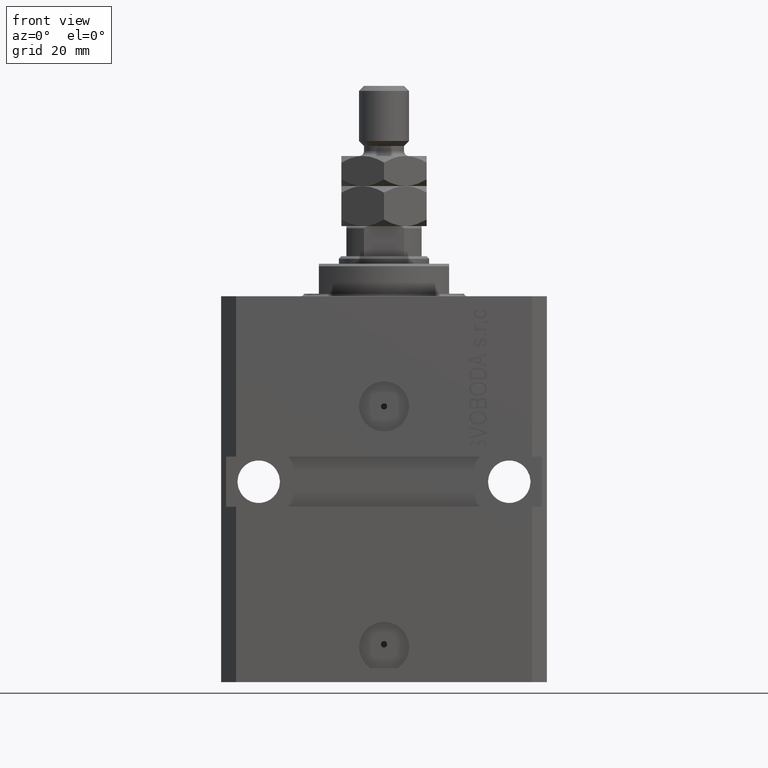
[diagram: clean part render]
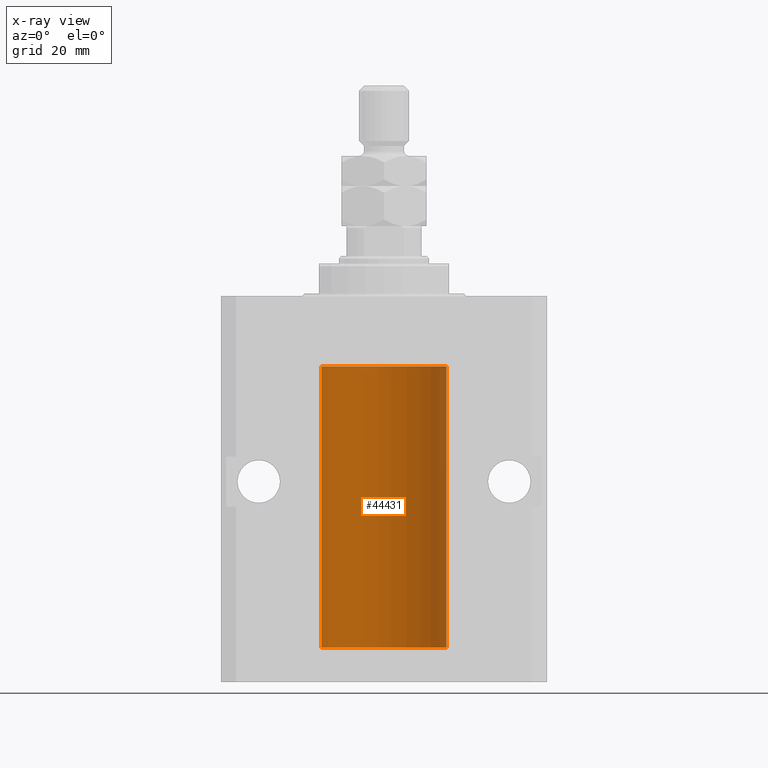
[diagram: x-ray — body ghosted, one internal face saturated and labeled with its STEP entity id]
A machine part, front view, then the same camera in x-ray: the body is ghosted and one INTERNAL B-rep face — a face not visible from any outside direction — is saturated and labeled: STEP entity #44431.
In plain terms, the highlighted cylindrical surface (partial cylindrical patch) has radius 12.5 mm, axis along (0, 0, 1).
Its self-contained STEP definition (entity closure, byte-faithful):
#1528 = CARTESIAN_POINT ( 'NONE',  ( -12.50000000000000000, 1.530808498934191521E-15, -70.09999999999999432 ) ) ;
#1758 = CARTESIAN_POINT ( 'NONE',  ( 0.000000000000000000, 0.000000000000000000, -13.99999999999999822 ) ) ;
#1916 = CARTESIAN_POINT ( 'NONE',  ( -12.50000000000000000, 1.530808498934191521E-15, -70.09999999999999432 ) ) ;
#2045 = VERTEX_POINT ( 'NONE', #35384 ) ;
#2124 = VERTEX_POINT ( 'NONE', #19880 ) ;
#2468 = CARTESIAN_POINT ( 'NONE',  ( 0.000000000000000000, 0.000000000000000000, -70.09999999999999432 ) ) ;
#2909 = ORIENTED_EDGE ( 'NONE', *, *, #47542, .F. ) ;
#2944 = CARTESIAN_POINT ( 'NONE',  ( -12.48436813453758454, 0.6249418250771192618, -21.83668996798922635 ) ) ;
#3415 = CARTESIAN_POINT ( 'NONE',  ( -12.48436376893640443, 0.6250290278979917513, -22.08132082824473486 ) ) ;
#4339 = CIRCLE ( 'NONE', #37390, 12.50000000000000000 ) ;
#4475 = VECTOR ( 'NONE', #43895, 1000.000000000000000 ) ;
#4681 = CARTESIAN_POINT ( 'NONE',  ( -12.50000000000017941, 3.883381774819353300E-13, -65.62500000000359535 ) ) ;
#4797 = VERTEX_POINT ( 'NONE', #5204 ) ;
#5204 = CARTESIAN_POINT ( 'NONE',  ( 12.50000000000000000, 0.000000000000000000, -13.99999999999999822 ) ) ;
#5277 = CARTESIAN_POINT ( 'NONE',  ( -12.49999999999999822, 0.1631761135151225950, -65.62499999999985789 ) ) ;
#6987 = DIRECTION ( 'NONE',  ( 1.000000000000000000, 0.000000000000000000, 0.000000000000000000 ) ) ;
#7117 = CARTESIAN_POINT ( 'NONE',  ( -12.49625855304193678, 0.3150454781038042329, -21.45402800297484802 ) ) ;
#7350 = CARTESIAN_POINT ( 'NONE',  ( -12.48520330846397819, 0.6088355886774127201, -22.16325431852561323 ) ) ;
#7991 = VERTEX_POINT ( 'NONE', #18638 ) ;
#8958 = CARTESIAN_POINT ( 'NONE',  ( -12.49422197749724361, 0.3843754434364307082, -64.50047099568097053 ) ) ;
#9176 = VECTOR ( 'NONE', #22937, 1000.000000000000000 ) ;
#9209 = CARTESIAN_POINT ( 'NONE',  ( -12.49625855304193500, 0.3150454781038046770, -64.45402800297485157 ) ) ;
#9453 = CARTESIAN_POINT ( 'NONE',  ( -12.49915784441386890, 0.1636601911727943726, -64.39126818989430490 ) ) ;
#9686 = CARTESIAN_POINT ( 'NONE',  ( -12.48810268015257741, 0.5573155909661293705, -64.67347410093867666 ) ) ;
#9842 = B_SPLINE_CURVE_WITH_KNOTS ( 'NONE', 3,
 ( #24240, #46654, #9453, #9209, #8958, #9686, #12897, #27938, #20783, #24708, #35568, #39754, #5277, #39281 ),
 .UNSPECIFIED., .F., .F.,
 ( 4, 2, 2, 2, 2, 2, 4 ),
 ( 3.492495172846855184E-18, 0.0002442924852390798859, 0.0004885849704781563023, 0.0009771699409563386254, 0.001221462426195450658, 0.001465754911434562473, 0.001954339881912786538 ),
 .UNSPECIFIED. ) ;
#10438 = ORIENTED_EDGE ( 'NONE', *, *, #41133, .T. ) ;
#10461 = VERTEX_POINT ( 'NONE', #4681 ) ;
#12626 = B_SPLINE_CURVE_WITH_KNOTS ( 'NONE', 3,
 ( #26086, #40885, #21666, #7117, #41117, #37180, #2944, #3415, #7350, #18455, #33467, #32998, #29539, #48508 ),
 .UNSPECIFIED., .F., .F.,
 ( 4, 2, 2, 2, 2, 2, 4 ),
 ( 2.030551168097110502E-20, 0.0002442924852390969078, 0.0004885849704781938157, 0.0009771699409563880650, 0.001221462426195485135, 0.001465754911434582423, 0.001954339881912776130 ),
 .UNSPECIFIED. ) ;
#12897 = CARTESIAN_POINT ( 'NONE',  ( -12.48436813453758809, 0.6249418250771181516, -64.83668996798922990 ) ) ;
#17747 = ORIENTED_EDGE ( 'NONE', *, *, #19036, .T. ) ;
#17855 = FACE_OUTER_BOUND ( 'NONE', #44919, .T. ) ;
#18455 = CARTESIAN_POINT ( 'NONE',  ( -12.48809959379011403, 0.5462151254764975317, -22.31461370481611795 ) ) ;
#18638 = CARTESIAN_POINT ( 'NONE',  ( 12.50000000000000000, 0.000000000000000000, -70.09999999999999432 ) ) ;
#19036 = EDGE_CURVE ( 'NONE', #4797, #35831, #4339, .T. ) ;
#19518 = EDGE_CURVE ( 'NONE', #2124, #10461, #9842, .T. ) ;
#19880 = CARTESIAN_POINT ( 'NONE',  ( -12.50000000000000000, -1.053276923642966949E-14, -64.37500000000000000 ) ) ;
#20783 = CARTESIAN_POINT ( 'NONE',  ( -12.48520330846398174, 0.6088355886774118320, -65.16325431852561678 ) ) ;
#21322 = EDGE_CURVE ( 'NONE', #32458, #23440, #12626, .T. ) ;
#21475 = ORIENTED_EDGE ( 'NONE', *, *, #35467, .F. ) ;
#21666 = CARTESIAN_POINT ( 'NONE',  ( -12.49915784441386890, 0.1636601911727947889, -21.39126818989430490 ) ) ;
#22464 = VECTOR ( 'NONE', #24814, 1000.000000000000000 ) ;
#22937 = DIRECTION ( 'NONE',  ( -0.000000000000000000, -0.000000000000000000, 1.000000000000000000 ) ) ;
#23440 = VERTEX_POINT ( 'NONE', #39636 ) ;
#24240 = CARTESIAN_POINT ( 'NONE',  ( -12.50000000000000000, -1.053276923642966949E-14, -64.37500000000000000 ) ) ;
#24632 = DIRECTION ( 'NONE',  ( 0.000000000000000000, 0.000000000000000000, 1.000000000000000000 ) ) ;
#24708 = CARTESIAN_POINT ( 'NONE',  ( -12.48809959379011580, 0.5462151254764966435, -65.31461370481613926 ) ) ;
#24814 = DIRECTION ( 'NONE',  ( -0.000000000000000000, -0.000000000000000000, 1.000000000000000000 ) ) ;
#26086 = CARTESIAN_POINT ( 'NONE',  ( -12.50000000000000000, -2.089494013101375120E-17, -21.37499999999999645 ) ) ;
#27578 = VECTOR ( 'NONE', #39494, 1000.000000000000000 ) ;
#27938 = CARTESIAN_POINT ( 'NONE',  ( -12.48436376893640265, 0.6250290278979918623, -65.08132082824472775 ) ) ;
#29539 = CARTESIAN_POINT ( 'NONE',  ( -12.49999999999999289, 0.1631761135151241215, -22.62499999999984013 ) ) ;
#29573 = CIRCLE ( 'NONE', #35760, 12.50000000000000000 ) ;
#29653 = DIRECTION ( 'NONE',  ( -0.000000000000000000, -0.000000000000000000, 1.000000000000000000 ) ) ;
#30135 = CARTESIAN_POINT ( 'NONE',  ( 0.000000000000000000, 0.000000000000000000, -70.09999999999999432 ) ) ;
#31064 = LINE ( 'NONE', #43312, #22464 ) ;
#32458 = VERTEX_POINT ( 'NONE', #36025 ) ;
#32998 = CARTESIAN_POINT ( 'NONE',  ( -12.49631005746706336, 0.3253680783018528255, -22.55856740465392463 ) ) ;
#33467 = CARTESIAN_POINT ( 'NONE',  ( -12.49011732893843529, 0.5003763274120274218, -22.38348111289287701 ) ) ;
#34707 = ORIENTED_EDGE ( 'NONE', *, *, #42782, .F. ) ;
#35384 = CARTESIAN_POINT ( 'NONE',  ( -12.50000000000000000, 1.530808498934191521E-15, -70.09999999999999432 ) ) ;
#35467 = EDGE_CURVE ( 'NONE', #32458, #35831, #46148, .T. ) ;
#35568 = CARTESIAN_POINT ( 'NONE',  ( -12.49011732893843885, 0.5003763274120245352, -65.38348111289289477 ) ) ;
#35760 = AXIS2_PLACEMENT_3D ( 'NONE', #2468, #24632, #43606 ) ;
#35831 = VERTEX_POINT ( 'NONE', #47550 ) ;
#35838 = AXIS2_PLACEMENT_3D ( 'NONE', #30135, #29653, #6987 ) ;
#36025 = CARTESIAN_POINT ( 'NONE',  ( -12.50000000000000000, -2.089494013101375120E-17, -21.37499999999999645 ) ) ;
#36239 = ORIENTED_EDGE ( 'NONE', *, *, #46642, .F. ) ;
#37180 = CARTESIAN_POINT ( 'NONE',  ( -12.48810268015257563, 0.5573155909661349217, -21.67347410093867666 ) ) ;
#37390 = AXIS2_PLACEMENT_3D ( 'NONE', #1758, #46353, #47081 ) ;
#37503 = ORIENTED_EDGE ( 'NONE', *, *, #21322, .T. ) ;
#39281 = CARTESIAN_POINT ( 'NONE',  ( -12.50000000000017941, 3.883381774819353300E-13, -65.62500000000359535 ) ) ;
#39494 = DIRECTION ( 'NONE',  ( -0.000000000000000000, -0.000000000000000000, 1.000000000000000000 ) ) ;
#39636 = CARTESIAN_POINT ( 'NONE',  ( -12.50000000000017941, 3.883381646606358354E-13, -22.62500000000358824 ) ) ;
#39754 = CARTESIAN_POINT ( 'NONE',  ( -12.49631005746706514, 0.3253680783018499389, -65.55856740465391397 ) ) ;
#40885 = CARTESIAN_POINT ( 'NONE',  ( -12.50000000000000000, 0.08260426088729219685, -21.37500000000000000 ) ) ;
#41117 = CARTESIAN_POINT ( 'NONE',  ( -12.49422197749724006, 0.3843754434364375916, -21.50047099568095277 ) ) ;
#41133 = EDGE_CURVE ( 'NONE', #7991, #4797, #31064, .T. ) ;
#41903 = LINE ( 'NONE', #1916, #9176 ) ;
#42668 = LINE ( 'NONE', #1528, #4475 ) ;
#42782 = EDGE_CURVE ( 'NONE', #7991, #2045, #29573, .T. ) ;
#43312 = CARTESIAN_POINT ( 'NONE',  ( 12.50000000000000000, 0.000000000000000000, -70.09999999999999432 ) ) ;
#43606 = DIRECTION ( 'NONE',  ( 1.000000000000000000, 0.000000000000000000, 0.000000000000000000 ) ) ;
#43895 = DIRECTION ( 'NONE',  ( -0.000000000000000000, -0.000000000000000000, 1.000000000000000000 ) ) ;
#44431 = ADVANCED_FACE ( 'NONE', ( #17855 ), #44679, .F. ) ;
#44679 = CYLINDRICAL_SURFACE ( 'NONE', #35838, 12.50000000000000000 ) ;
#44862 = ORIENTED_EDGE ( 'NONE', *, *, #19518, .T. ) ;
#44919 = EDGE_LOOP ( 'NONE', ( #2909, #34707, #10438, #17747, #21475, #37503, #36239, #44862 ) ) ;
#46148 = LINE ( 'NONE', #47127, #27578 ) ;
#46353 = DIRECTION ( 'NONE',  ( 0.000000000000000000, 0.000000000000000000, 1.000000000000000000 ) ) ;
#46642 = EDGE_CURVE ( 'NONE', #2124, #23440, #41903, .T. ) ;
#46654 = CARTESIAN_POINT ( 'NONE',  ( -12.49999999999999645, 0.08260426088728485550, -64.37499999999998579 ) ) ;
#47081 = DIRECTION ( 'NONE',  ( 1.000000000000000000, 0.000000000000000000, 0.000000000000000000 ) ) ;
#47127 = CARTESIAN_POINT ( 'NONE',  ( -12.50000000000000000, 1.530808498934191521E-15, -70.09999999999999432 ) ) ;
#47542 = EDGE_CURVE ( 'NONE', #2045, #10461, #42668, .T. ) ;
#47550 = CARTESIAN_POINT ( 'NONE',  ( -12.50000000000000000, 1.530808498934191521E-15, -13.99999999999999822 ) ) ;
#48508 = CARTESIAN_POINT ( 'NONE',  ( -12.50000000000017941, 3.883381646606358354E-13, -22.62500000000358824 ) ) ;